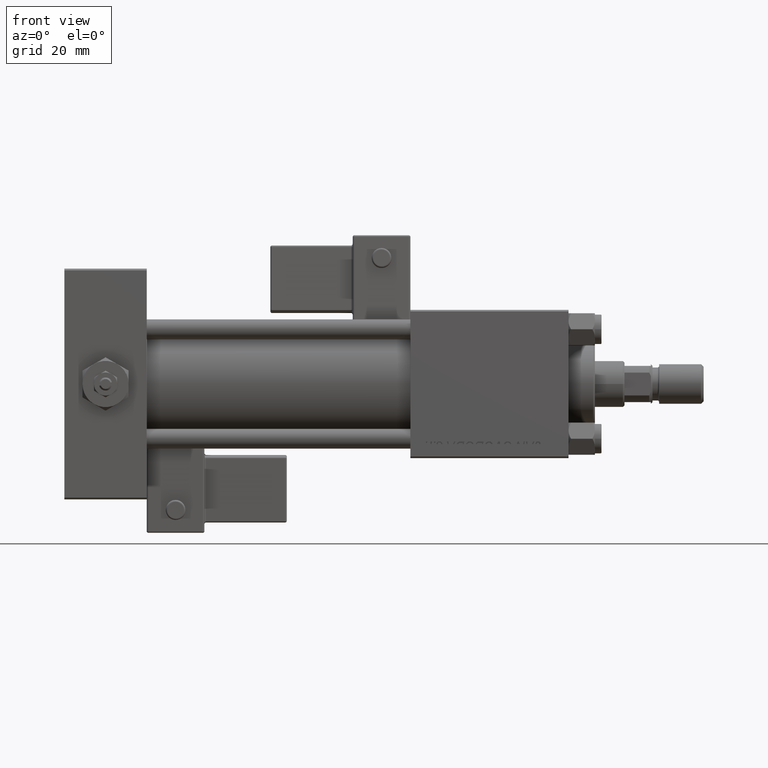
[diagram: clean part render]
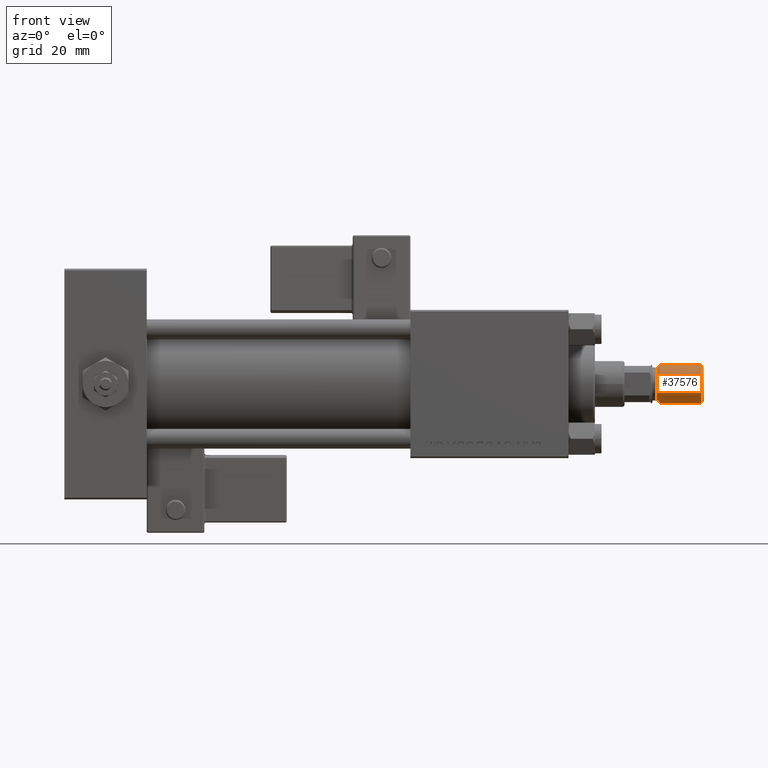
[diagram: same view with one face highlighted and labeled with its STEP entity id]
A machine part, front view. The second image highlights one B-rep face of the part: STEP entity #37576.
In plain terms, the highlighted cylindrical surface (edge-blend (fillet) strip) has radius 6 mm, axis along (1, -0, -0).
Its self-contained STEP definition (entity closure, byte-faithful):
#851 = DIRECTION ( 'NONE',  ( 1.000000000000000000, 0.000000000000000000, 0.000000000000000000 ) ) ;
#4481 = VERTEX_POINT ( 'NONE', #23486 ) ;
#4521 = CARTESIAN_POINT ( 'NONE',  ( 6.000000000000000888, 7.347880794884120722E-16, 13.50000000000000000 ) ) ;
#4975 = CARTESIAN_POINT ( 'NONE',  ( 0.000000000000000000, 0.000000000000000000, 13.50000000000000000 ) ) ;
#6704 = DIRECTION ( 'NONE',  ( -0.000000000000000000, -0.000000000000000000, 1.000000000000000000 ) ) ;
#8748 = VERTEX_POINT ( 'NONE', #26652 ) ;
#8920 = CARTESIAN_POINT ( 'NONE',  ( -6.000000000000000888, 0.000000000000000000, 0.8000000000000055955 ) ) ;
#10852 = AXIS2_PLACEMENT_3D ( 'NONE', #31734, #6704, #41621 ) ;
#12541 = ORIENTED_EDGE ( 'NONE', *, *, #50871, .T. ) ;
#16868 = ORIENTED_EDGE ( 'NONE', *, *, #35242, .F. ) ;
#18806 = EDGE_LOOP ( 'NONE', ( #22513, #16868, #54273, #12541 ) ) ;
#20005 = CIRCLE ( 'NONE', #53438, 6.000000000000000888 ) ;
#22097 = EDGE_CURVE ( 'NONE', #4481, #29066, #47010, .T. ) ;
#22513 = ORIENTED_EDGE ( 'NONE', *, *, #46213, .F. ) ;
#22828 = CYLINDRICAL_SURFACE ( 'NONE', #52647, 6.000000000000000888 ) ;
#23200 = VECTOR ( 'NONE', #25528, 1000.000000000000000 ) ;
#23486 = CARTESIAN_POINT ( 'NONE',  ( -6.000000000000000888, 0.000000000000000000, 13.50000000000000000 ) ) ;
#25528 = DIRECTION ( 'NONE',  ( -0.000000000000000000, -0.000000000000000000, -1.000000000000000000 ) ) ;
#26099 = CARTESIAN_POINT ( 'NONE',  ( 6.000000000000000888, 7.347880794884120722E-16, 0.8000000000000055955 ) ) ;
#26652 = CARTESIAN_POINT ( 'NONE',  ( 6.000000000000000888, 7.347880794884120722E-16, 13.50000000000000000 ) ) ;
#27220 = DIRECTION ( 'NONE',  ( -0.000000000000000000, -0.000000000000000000, -1.000000000000000000 ) ) ;
#29066 = VERTEX_POINT ( 'NONE', #8920 ) ;
#29570 = DIRECTION ( 'NONE',  ( -0.000000000000000000, -0.000000000000000000, -1.000000000000000000 ) ) ;
#31734 = CARTESIAN_POINT ( 'NONE',  ( 0.000000000000000000, 0.000000000000000000, 0.8000000000000055955 ) ) ;
#33415 = LINE ( 'NONE', #4521, #48428 ) ;
#35242 = EDGE_CURVE ( 'NONE', #4481, #8748, #20005, .T. ) ;
#35643 = VERTEX_POINT ( 'NONE', #26099 ) ;
#37576 = ADVANCED_FACE ( 'NONE', ( #39623 ), #22828, .T. ) ;
#38556 = DIRECTION ( 'NONE',  ( 0.000000000000000000, 0.000000000000000000, 1.000000000000000000 ) ) ;
#39083 = DIRECTION ( 'NONE',  ( -1.000000000000000000, 0.000000000000000000, 0.000000000000000000 ) ) ;
#39623 = FACE_OUTER_BOUND ( 'NONE', #18806, .T. ) ;
#41621 = DIRECTION ( 'NONE',  ( 1.000000000000000000, 0.000000000000000000, 0.000000000000000000 ) ) ;
#43488 = CARTESIAN_POINT ( 'NONE',  ( 0.000000000000000000, 0.000000000000000000, 13.50000000000000000 ) ) ;
#45105 = CIRCLE ( 'NONE', #10852, 6.000000000000000888 ) ;
#46213 = EDGE_CURVE ( 'NONE', #8748, #35643, #33415, .T. ) ;
#47010 = LINE ( 'NONE', #50878, #23200 ) ;
#48428 = VECTOR ( 'NONE', #29570, 1000.000000000000000 ) ;
#50871 = EDGE_CURVE ( 'NONE', #29066, #35643, #45105, .T. ) ;
#50878 = CARTESIAN_POINT ( 'NONE',  ( -6.000000000000000888, 0.000000000000000000, 13.50000000000000000 ) ) ;
#52647 = AXIS2_PLACEMENT_3D ( 'NONE', #43488, #27220, #39083 ) ;
#53438 = AXIS2_PLACEMENT_3D ( 'NONE', #4975, #38556, #851 ) ;
#54273 = ORIENTED_EDGE ( 'NONE', *, *, #22097, .T. ) ;